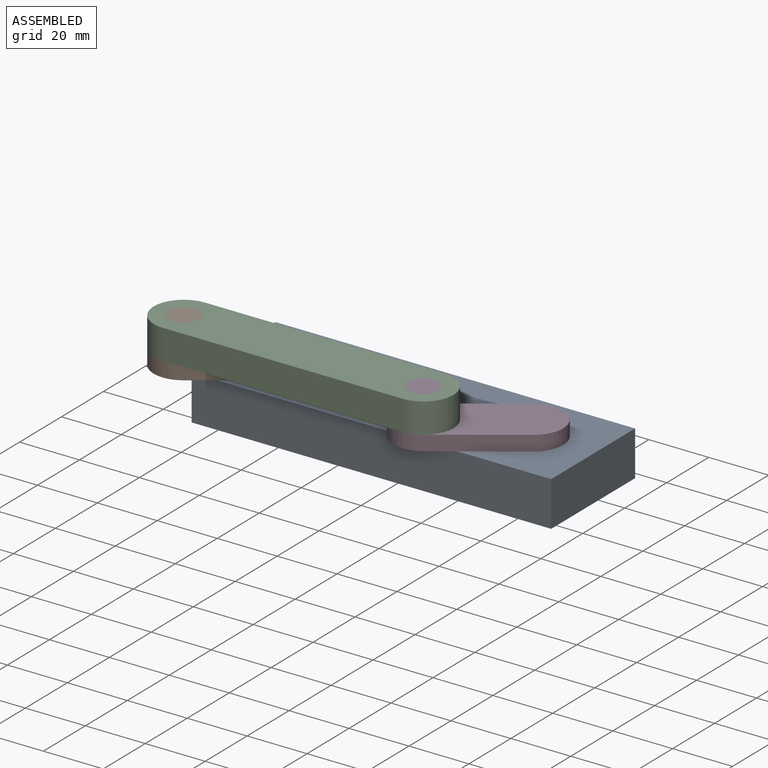
[diagram: assembled view]
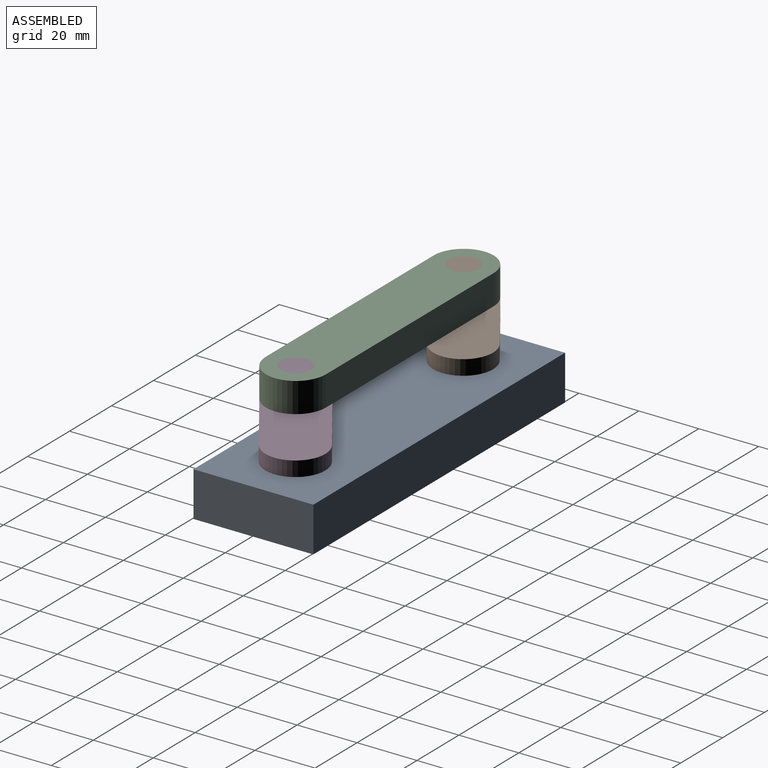
[diagram: assembled view, second angle]
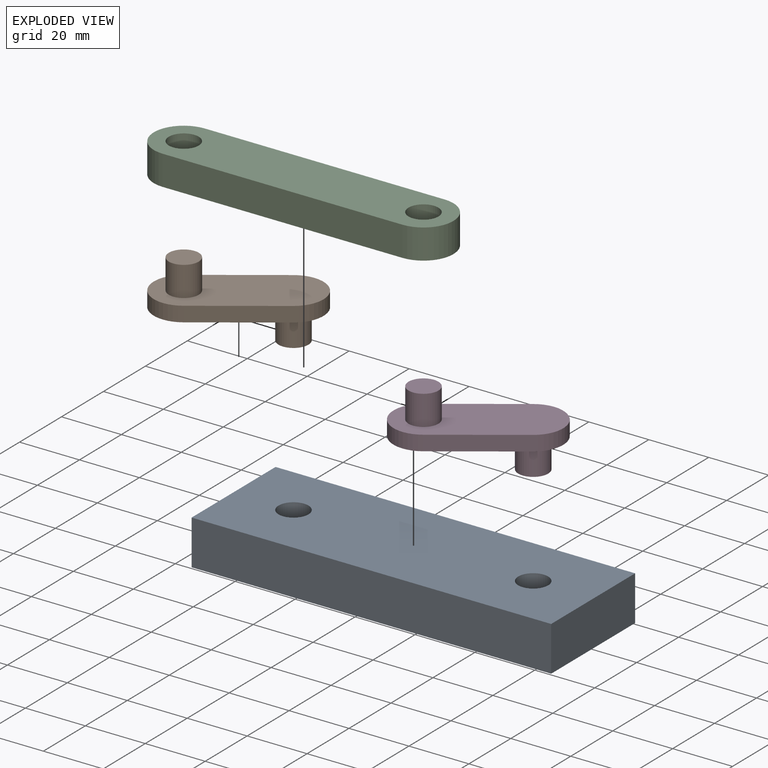
[diagram: exploded view]
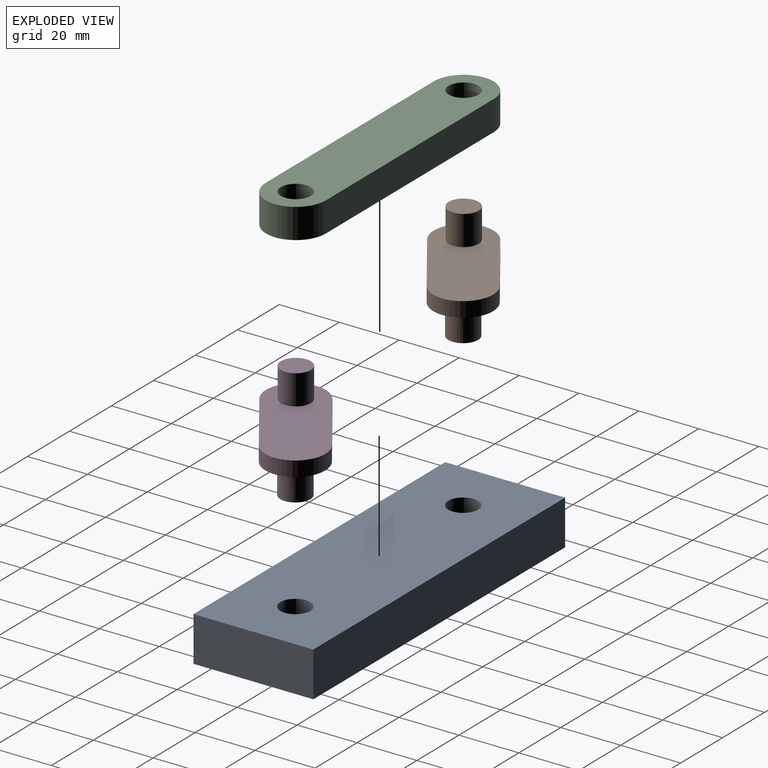
[diagram: exploded view, second angle]
ASSEMBLY  parts=4 mates=4
PART A: 8 faces, bbox 120x40x15 mm
  f0: plane 120x15mm, normal (0,-1,0), area 1800mm2, adj f1,f5,f6,f7
  f1: plane 40x15mm, normal (1,0,0), area 600mm2, adj f0,f2,f6,f7
  f2: plane 120x15mm, normal (0,1,0), area 1800mm2, adj f1,f5,f6,f7
  f3: cylinder r=5mm len=15mm, axis (0,0,-1), area 471.2mm2, adj f6,f7
  f4: cylinder r=5mm len=15mm, axis (0,0,-1), area 471.2mm2, adj f6,f7
  f5: plane 40x15mm, normal (-1,0,0), area 600mm2, adj f0,f2,f6,f7
  f6: plane 120x40mm, normal (0,0,1), area 4642.9mm2, adj f0,f1,f2,f3,f4,f5
  f7: plane 120x40mm, normal (0,0,-1), area 4642.9mm2, adj f0,f1,f2,f3,f4,f5
PART B: 10 faces, bbox 50x20x25 mm
  f0: plane 50x20mm, normal (0,0,1), area 835.6mm2, adj f2,f3,f4,f8,f9
  f1: plane 50x20mm, normal (0,0,-1), area 835.6mm2, adj f2,f3,f6,f8,f9
  f2: plane 30x5mm, normal (0,1,0), area 150mm2, adj f0,f1,f8,f9
  f3: plane 30x5mm, normal (0,-1,0), area 150mm2, adj f0,f1,f8,f9
  f4: cylinder r=5mm len=10mm, axis (0,0,-1), area 314.2mm2, adj f0,f5
  f5: plane 10x10mm, normal (0,0,1), area 78.5mm2, adj f4
  f6: cylinder r=5mm len=10mm, axis (0,0,1), area 314.2mm2, adj f1,f7
  f7: plane 10x10mm, normal (0,0,-1), area 78.5mm2, adj f6
  f8: cylinder r=10mm len=20mm, axis (0,0,1), area 157.1mm2, adj f0,f1,f2,f3
  f9: cylinder r=10mm len=20mm, axis (0,0,-1), area 157.1mm2, adj f0,f1,f2,f3
PART C: 8 faces, bbox 100x20x10 mm
  f0: plane 100x20mm, normal (0,0,-1), area 1757.1mm2, adj f2,f3,f4,f5,f6,f7
  f1: plane 100x20mm, normal (0,0,1), area 1757.1mm2, adj f2,f3,f4,f5,f6,f7
  f2: plane 80x10mm, normal (0,1,0), area 800mm2, adj f0,f1,f6,f7
  f3: plane 80x10mm, normal (0,-1,0), area 800mm2, adj f0,f1,f6,f7
  f4: cylinder r=5mm len=10mm, axis (0,0,1), area 314.2mm2, adj f0,f1
  f5: cylinder r=5mm len=10mm, axis (0,0,1), area 314.2mm2, adj f0,f1
  f6: cylinder r=10mm len=20mm, axis (0,0,-1), area 314.2mm2, adj f0,f1,f2,f3
  f7: cylinder r=10mm len=20mm, axis (0,0,1), area 314.2mm2, adj f0,f1,f2,f3
PART D: same geometry as B
PLACE A t=(67.7,16.81,51.42)mm fixed
PLACE B rot(axis=(0,0,1),34.7deg) t=(60.52,5.81,24.24)mm
PLACE C t=(53.04,9.72,107.33)mm
PLACE D rot(axis=(0,0,1),34.7deg) t=(140.52,5.81,24.24)mm
MATE revolute D.f6 <-> A.f4  axis (0,0,1) through (167.7,36.81,66.42)mm
MATE revolute C.f5 <-> B.f4  axis (0,0,1) through (63.04,19.72,81.42)mm
MATE revolute C.f4 <-> D.f4  axis (0,0,1) through (143.04,19.72,81.42)mm
MATE revolute B.f6 <-> A.f3  axis (0,0,1) through (87.7,36.81,66.42)mm
